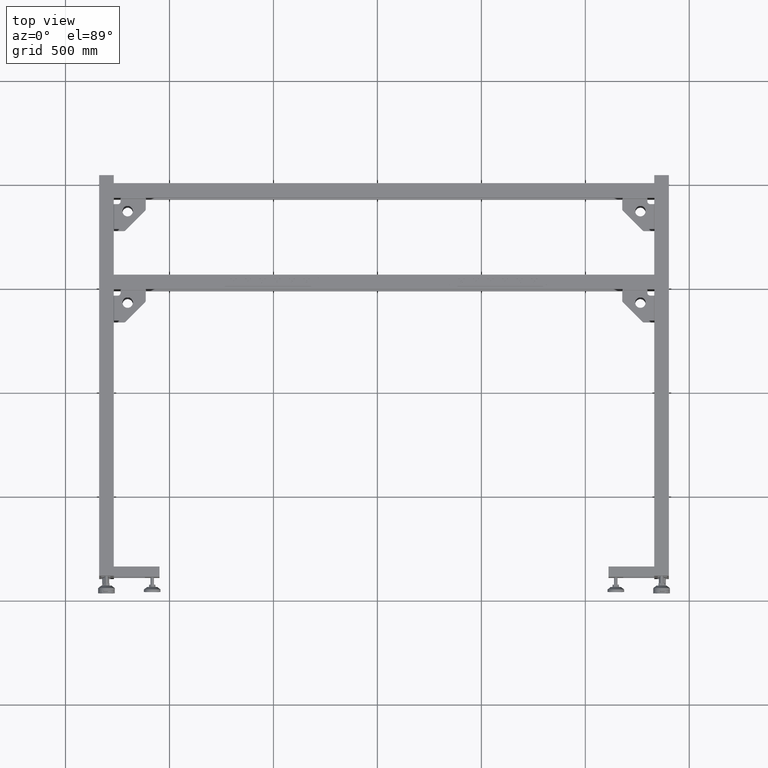
[diagram: clean part render]
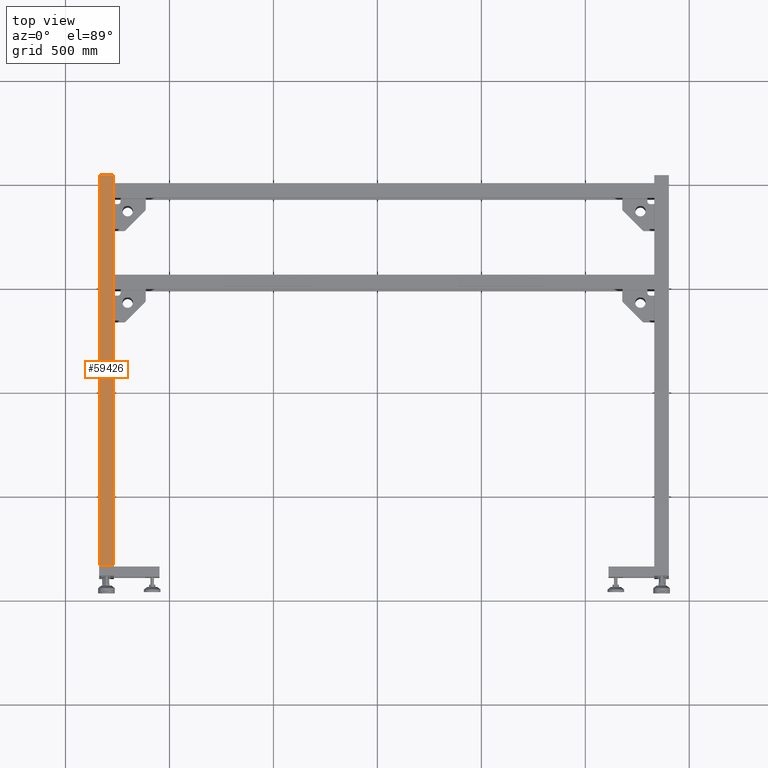
[diagram: same view with one face highlighted and labeled with its STEP entity id]
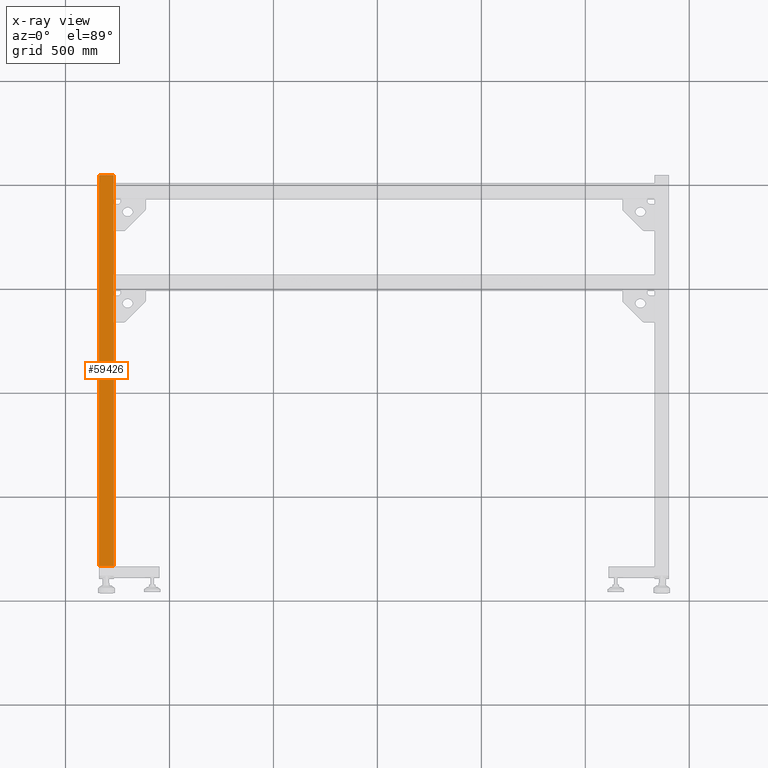
[diagram: x-ray of the same camera — body ghosted, the highlighted face saturated]
A machine part, top view. The second image highlights one B-rep face of the part: STEP entity #59426.
The next image is the same camera in x-ray: the body ghosted, the highlighted face saturated — about 0% of this face is hidden behind the body in this view.
In plain terms, the highlighted planar face has unit normal (0, 0, -1).
Its self-contained STEP definition (entity closure, byte-faithful):
#274 = PLANE ( 'NONE',  #76145 ) ;
#289 = ORIENTED_EDGE ( 'NONE', *, *, #41331, .T. ) ;
#435 = VERTEX_POINT ( 'NONE', #4285 ) ;
#1742 = CARTESIAN_POINT ( 'NONE',  ( -1338.172487437185964, 986.4410804020109254, 250.0000000000000000 ) ) ;
#2339 = VECTOR ( 'NONE', #39614, 1000.000000000000000 ) ;
#3490 = VECTOR ( 'NONE', #35847, 1000.000000000000000 ) ;
#4058 = VECTOR ( 'NONE', #17346, 1000.000000000000000 ) ;
#4278 = ORIENTED_EDGE ( 'NONE', *, *, #72773, .T. ) ;
#4285 = CARTESIAN_POINT ( 'NONE',  ( -1268.156444386293742, 926.9410804020110390, 249.9999999999999716 ) ) ;
#4901 = CARTESIAN_POINT ( 'NONE',  ( -1268.172487437185055, 919.4410804020111527, 249.9999999999999716 ) ) ;
#4963 = ORIENTED_EDGE ( 'NONE', *, *, #25180, .T. ) ;
#7635 = VERTEX_POINT ( 'NONE', #58547 ) ;
#8452 = LINE ( 'NONE', #39839, #23137 ) ;
#9404 = EDGE_CURVE ( 'NONE', #70309, #7635, #23645, .T. ) ;
#11213 = DIRECTION ( 'NONE',  ( -1.000000000000000078E-15, -1.000000000000000000, -0.000000000000000000 ) ) ;
#11299 = CARTESIAN_POINT ( 'NONE',  ( -1268.172487437185964, 986.4410804020109254, 250.0000000000000000 ) ) ;
#11658 = EDGE_CURVE ( 'NONE', #435, #63396, #66339, .T. ) ;
#12241 = VERTEX_POINT ( 'NONE', #31485 ) ;
#13665 = CARTESIAN_POINT ( 'NONE',  ( -1268.172487437185964, 926.9410804020109254, 249.9999999999999716 ) ) ;
#15046 = DIRECTION ( 'NONE',  ( 1.000000000000000000, -1.585669478376821542E-15, 0.000000000000000000 ) ) ;
#17346 = DIRECTION ( 'NONE',  ( -1.000000000000000000, 0.000000000000000000, 0.000000000000000000 ) ) ;
#17553 = CARTESIAN_POINT ( 'NONE',  ( -1303.172487437185964, 1011.441080402011039, 250.0000000000000000 ) ) ;
#17749 = CARTESIAN_POINT ( 'NONE',  ( -1338.172487437185964, 1036.441080402011039, 250.0000000000000000 ) ) ;
#21197 = CARTESIAN_POINT ( 'NONE',  ( -1338.172487437185964, 1036.441080402011039, 250.0000000000000000 ) ) ;
#21249 = EDGE_CURVE ( 'NONE', #25395, #12241, #66431, .T. ) ;
#21788 = EDGE_CURVE ( 'NONE', #70309, #54708, #40027, .T. ) ;
#21969 = LINE ( 'NONE', #77494, #63050 ) ;
#22133 = EDGE_CURVE ( 'NONE', #27993, #7635, #56854, .T. ) ;
#23137 = VECTOR ( 'NONE', #32994, 1000.000000000000000 ) ;
#23645 = LINE ( 'NONE', #48599, #53899 ) ;
#25180 = EDGE_CURVE ( 'NONE', #54708, #63396, #26697, .T. ) ;
#25395 = VERTEX_POINT ( 'NONE', #42733 ) ;
#25435 = ORIENTED_EDGE ( 'NONE', *, *, #21788, .T. ) ;
#26697 = LINE ( 'NONE', #51254, #66580 ) ;
#27993 = VERTEX_POINT ( 'NONE', #21197 ) ;
#30121 = EDGE_CURVE ( 'NONE', #12241, #27993, #47944, .T. ) ;
#30450 = VECTOR ( 'NONE', #11213, 1000.000000000000000 ) ;
#30482 = DIRECTION ( 'NONE',  ( -1.000000000000000000, 0.000000000000000000, 0.000000000000000000 ) ) ;
#31485 = CARTESIAN_POINT ( 'NONE',  ( -1268.172487437185964, 1036.441080402011039, 250.0000000000000000 ) ) ;
#32994 = DIRECTION ( 'NONE',  ( 0.000000000000000000, 1.000000000000000000, 0.000000000000000000 ) ) ;
#33332 = EDGE_LOOP ( 'NONE', ( #289, #47034, #34018, #35966, #43914, #25435, #4963, #39334, #4278 ) ) ;
#34018 = ORIENTED_EDGE ( 'NONE', *, *, #30121, .T. ) ;
#34289 = VERTEX_POINT ( 'NONE', #13665 ) ;
#35847 = DIRECTION ( 'NONE',  ( 0.000000000000000000, 1.000000000000000000, 0.000000000000000000 ) ) ;
#35966 = ORIENTED_EDGE ( 'NONE', *, *, #22133, .T. ) ;
#39334 = ORIENTED_EDGE ( 'NONE', *, *, #11658, .F. ) ;
#39513 = DIRECTION ( 'NONE',  ( 0.000000000000000000, -1.000000000000000000, 0.000000000000000000 ) ) ;
#39614 = DIRECTION ( 'NONE',  ( 0.000000000000000000, 1.000000000000000000, 0.000000000000000000 ) ) ;
#39839 = CARTESIAN_POINT ( 'NONE',  ( -1268.172487437185964, 986.4410804020109254, 250.0000000000000000 ) ) ;
#40027 = LINE ( 'NONE', #74347, #2339 ) ;
#41331 = EDGE_CURVE ( 'NONE', #34289, #25395, #8452, .T. ) ;
#41404 = CARTESIAN_POINT ( 'NONE',  ( -1268.156444386293742, 986.4410804020136538, 249.9999999999999716 ) ) ;
#42733 = CARTESIAN_POINT ( 'NONE',  ( -1268.172487437185964, 996.9410804020108117, 249.9999999999999716 ) ) ;
#43275 = DIRECTION ( 'NONE',  ( 0.000000000000000000, 0.000000000000000000, -1.000000000000000000 ) ) ;
#43914 = ORIENTED_EDGE ( 'NONE', *, *, #9404, .F. ) ;
#45323 = DIRECTION ( 'NONE',  ( -1.000000000000000000, 4.448884876874220047E-16, 0.000000000000000000 ) ) ;
#47034 = ORIENTED_EDGE ( 'NONE', *, *, #21249, .T. ) ;
#47944 = LINE ( 'NONE', #17749, #4058 ) ;
#48599 = CARTESIAN_POINT ( 'NONE',  ( -1338.172487437185055, -844.5589195979888473, 249.9999999999999716 ) ) ;
#49849 = VECTOR ( 'NONE', #39513, 1000.000000000000000 ) ;
#51254 = CARTESIAN_POINT ( 'NONE',  ( -1338.172487437185055, 919.4410804020136538, 249.9999999999999716 ) ) ;
#53899 = VECTOR ( 'NONE', #30482, 1000.000000000000000 ) ;
#54708 = VERTEX_POINT ( 'NONE', #4901 ) ;
#56854 = LINE ( 'NONE', #1742, #49849 ) ;
#58547 = CARTESIAN_POINT ( 'NONE',  ( -1338.172487437185055, -844.5589195979888473, 249.9999999999999716 ) ) ;
#59426 = ADVANCED_FACE ( 'NONE', ( #67828 ), #274, .F. ) ;
#63050 = VECTOR ( 'NONE', #45323, 1000.000000000000000 ) ;
#63396 = VERTEX_POINT ( 'NONE', #73282 ) ;
#66339 = LINE ( 'NONE', #41404, #30450 ) ;
#66431 = LINE ( 'NONE', #11299, #3490 ) ;
#66580 = VECTOR ( 'NONE', #15046, 1000.000000000000000 ) ;
#67828 = FACE_OUTER_BOUND ( 'NONE', #33332, .T. ) ;
#70309 = VERTEX_POINT ( 'NONE', #71305 ) ;
#71305 = CARTESIAN_POINT ( 'NONE',  ( -1268.172487437185055, -844.5589195979888473, 249.9999999999999716 ) ) ;
#72773 = EDGE_CURVE ( 'NONE', #435, #34289, #21969, .T. ) ;
#73282 = CARTESIAN_POINT ( 'NONE',  ( -1268.156444386293742, 919.4410804020135402, 249.9999999999999716 ) ) ;
#74257 = DIRECTION ( 'NONE',  ( 0.000000000000000000, -1.000000000000000000, 0.000000000000000000 ) ) ;
#74347 = CARTESIAN_POINT ( 'NONE',  ( -1268.172487437185055, -844.5589195979888473, 249.9999999999999716 ) ) ;
#76145 = AXIS2_PLACEMENT_3D ( 'NONE', #17553, #43275, #74257 ) ;
#77494 = CARTESIAN_POINT ( 'NONE',  ( -1268.172487437185964, 926.9410804020109254, 249.9999999999999716 ) ) ;